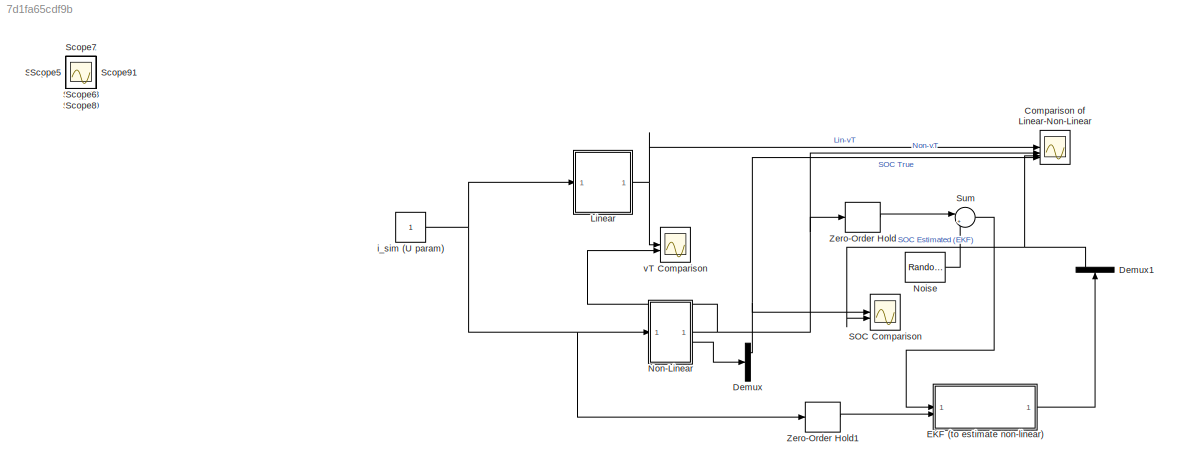
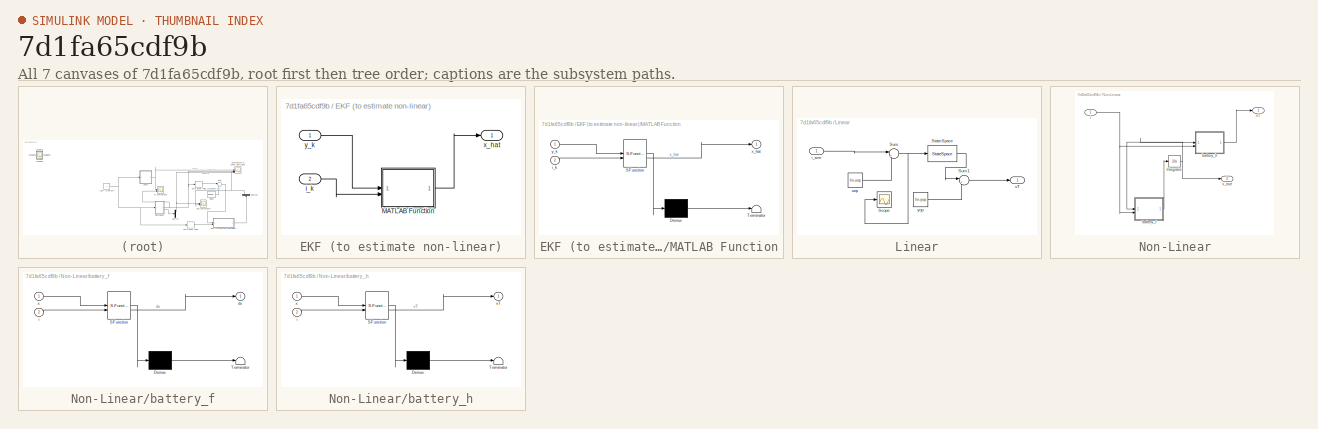
[diagram: thumbnail index - all 7 canvases of the model, root first then tree order]
MODEL slx_7d1fa65cdf9b
KIND model
CONFIG AbsTol = auto
CONFIG EnableMultiTasking = off
CONFIG FixedStep = auto
CONFIG InitFcn = params_battery;\n\nload('lin_battery.mat','lin');
CONFIG MaxStep = auto
CONFIG MinStep = auto
CONFIG PreLoadFcn = params_battery;
CONFIG RelTol = 1e-3
CONFIG SampleTimeConstraint = Unconstrained
CONFIG SolverName = VariableStepAuto
CONFIG StartTime = 0.0
CONFIG StopTime = 4000
BLOCK [Scope] Comparison of Linear-Non-Linear
  Floating = off
  NumInputPorts = 4
  ScopeSpecificationString = Simulink.scopes.TimeScopeBlockCfg('CurrentConfiguration', extmgr.ConfigurationSet(extmgr.Configuration('Core','General UI',true),extmgr.Configuration('Core','Source UI',true),extmgr.Configuration('Sources','WiredSimulink',true,'DataLoggingVariableName','ScopeData10'),extmgr.Configuration('Visuals','Time Domain',true,'SerializedDisplays',{struct('MinYLimReal','-0.48783','MaxYLimReal','3.912','YLabe...<+1573ch>
BLOCK [Demux] Demux
  Outputs = 3
BLOCK [Demux] Demux1
  NameLocation = right
  Outputs = 3
BLOCK [SubSystem] EKF (to estimate non-linear)
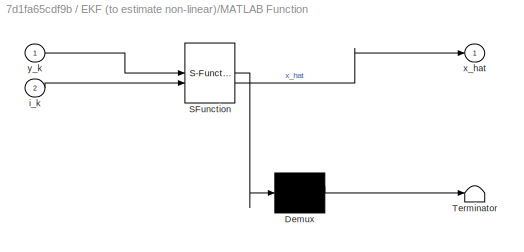
BLOCK [SubSystem] EKF (to estimate non-linear)/MATLAB Function
  ErrorFcn = Stateflow.Translate.translate
  PermitHierarchicalResolution = ExplicitOnly
  SFBlockType = MATLAB Function
  TreatAsAtomicUnit = on
BLOCK [Demux] EKF (to estimate non-linear)/MATLAB Function/ Demux 
  Outputs = 1
BLOCK [S-Function] EKF (to estimate non-linear)/MATLAB Function/ SFunction 
  EnableBusSupport = on
  FunctionName = sf_sfun
  Parameters = theta
  PortCounts = [2 2]
  SFcnIsStateOwnerBlock = off
  SFunctionDeploymentMode = off
  Tag = Stateflow S-Function 3
BLOCK [Terminator] EKF (to estimate non-linear)/MATLAB Function/ Terminator 
BLOCK [Inport] EKF (to estimate non-linear)/MATLAB Function/i_k
  Port = 2
BLOCK [Outport] EKF (to estimate non-linear)/MATLAB Function/x_hat
BLOCK [Inport] EKF (to estimate non-linear)/MATLAB Function/y_k
BLOCK [Inport] EKF (to estimate non-linear)/i_k
  Port = 2
BLOCK [Outport] EKF (to estimate non-linear)/x_hat
BLOCK [Inport] EKF (to estimate non-linear)/y_k
BLOCK [SubSystem] Linear
BLOCK [Scope] Linear/Scope
  Floating = off
  NumInputPorts = 1
  ScopeSpecificationString = Simulink.scopes.TimeScopeBlockCfg('CurrentConfiguration', extmgr.ConfigurationSet(extmgr.Configuration('Core','General UI',true),extmgr.Configuration('Core','Source UI',true),extmgr.Configuration('Sources','WiredSimulink',true,'DataLoggingVariableName','ScopeData1'),extmgr.Configuration('Visuals','Time Domain',true,'SerializedDisplays',{struct('MinYLimReal','0.9','MaxYLimReal','1.1','YLabelReal','...<+1452ch>
BLOCK [StateSpace] Linear/State-Space
  A = lin.A
  B = lin.B
  C = lin.C
  D = lin.D
  InitialCondition = [0 0 0]
BLOCK [Sum] Linear/Sum
  Inputs = |+-
BLOCK [Sum] Linear/Sum1
  Inputs = |++
BLOCK [Inport] Linear/i_sim
BLOCK [Constant] Linear/uop
  Value = lin.uop
  VectorParams1D = off
BLOCK [Outport] Linear/vT
BLOCK [Constant] Linear/yop
  Value = lin.yop
BLOCK [RandomNumber] Noise
  SampleTime = Ts
  Variance = 1e-4
BLOCK [SubSystem] Non-Linear
BLOCK [Integrator] Non-Linear/Integrator
  InitialCondition = [0.4; 0; 0]
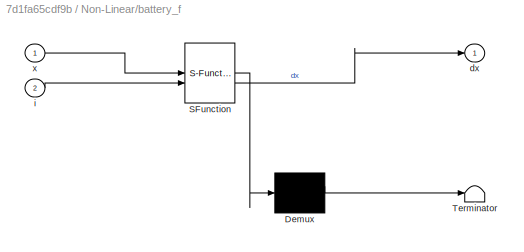
BLOCK [SubSystem] Non-Linear/battery_f
  ErrorFcn = Stateflow.Translate.translate
  PermitHierarchicalResolution = ExplicitOnly
  SFBlockType = MATLAB Function
  TreatAsAtomicUnit = on
BLOCK [Demux] Non-Linear/battery_f/ Demux 
  Outputs = 1
BLOCK [S-Function] Non-Linear/battery_f/ SFunction 
  EnableBusSupport = on
  FunctionName = sf_sfun
  Parameters = theta
  PortCounts = [2 2]
  SFcnIsStateOwnerBlock = off
  SFunctionDeploymentMode = off
  Tag = Stateflow S-Function 2
BLOCK [Terminator] Non-Linear/battery_f/ Terminator 
BLOCK [Outport] Non-Linear/battery_f/dx
BLOCK [Inport] Non-Linear/battery_f/i
  Port = 2
BLOCK [Inport] Non-Linear/battery_f/x
BLOCK [SubSystem] Non-Linear/battery_h
  ErrorFcn = Stateflow.Translate.translate
  PermitHierarchicalResolution = ExplicitOnly
  SFBlockType = MATLAB Function
  TreatAsAtomicUnit = on
BLOCK [Demux] Non-Linear/battery_h/ Demux 
  Outputs = 1
BLOCK [S-Function] Non-Linear/battery_h/ SFunction 
  EnableBusSupport = on
  FunctionName = sf_sfun
  Parameters = theta
  PortCounts = [2 2]
  SFcnIsStateOwnerBlock = off
  SFunctionDeploymentMode = off
  Tag = Stateflow S-Function 1
BLOCK [Terminator] Non-Linear/battery_h/ Terminator 
BLOCK [Inport] Non-Linear/battery_h/i
  Port = 2
BLOCK [Outport] Non-Linear/battery_h/vT
BLOCK [Inport] Non-Linear/battery_h/x
BLOCK [Inport] Non-Linear/i
BLOCK [Outport] Non-Linear/vT
BLOCK [Outport] Non-Linear/x_true
  Port = 2
BLOCK [Scope] SOC Comparison
  Floating = off
  NumInputPorts = 2
  ScopeSpecificationString = Simulink.scopes.TimeScopeBlockCfg('CurrentConfiguration', extmgr.ConfigurationSet(extmgr.Configuration('Core','General UI',true),extmgr.Configuration('Core','Source UI',true),extmgr.Configuration('Sources','WiredSimulink',true,'DataLoggingVariableName','ScopeData5'),extmgr.Configuration('Visuals','Time Domain',true,'SerializedDisplays',{struct('MinYLimReal','-0.00298','MaxYLimReal','0.44478','YLab...<+2314ch>
BLOCK [Scope] Scope
  Floating = off
  IOType = viewer
  NumInputPorts = 1
  ScopeSpecificationString = Simulink.scopes.TimeScopeBlockCfg('CurrentConfiguration', extmgr.ConfigurationSet(extmgr.Configuration('Core','General UI',true),extmgr.Configuration('Core','Source UI',true),extmgr.Configuration('Sources','WiredSimulink',true),extmgr.Configuration('Visuals','Time Domain',true,'SerializedDisplays',{struct('MinYLimReal','-1.00000','MaxYLimReal','1.00000','YLabelReal','','MinYLimMag','0.00000','MaxY...<+1409ch>
BLOCK [Scope] Scope1
  Floating = off
  IOType = viewer
  NumInputPorts = 1
  ScopeSpecificationString = Simulink.scopes.TimeScopeBlockCfg('CurrentConfiguration', extmgr.ConfigurationSet(extmgr.Configuration('Core','General UI',true),extmgr.Configuration('Core','Source UI',true),extmgr.Configuration('Sources','WiredSimulink',true,'DataLoggingVariableName','ScopeData1'),extmgr.Configuration('Visuals','Time Domain',true,'SerializedDisplays',{struct('MinYLimReal','-1.00000','MaxYLimReal','1.00000','YLab...<+1515ch>
BLOCK [Scope] Scope10
  Floating = off
  IOType = viewer
  NumInputPorts = 1
  ScopeSpecificationString = Simulink.scopes.TimeScopeBlockCfg('CurrentConfiguration', extmgr.ConfigurationSet(extmgr.Configuration('Core','General UI',true),extmgr.Configuration('Core','Source UI',true),extmgr.Configuration('Sources','WiredSimulink',true,'DataLoggingVariableName','ScopeData11'),extmgr.Configuration('Visuals','Time Domain',true,'SerializedDisplays',{struct('MinYLimReal','-0.13119','MaxYLimReal','1.10737','YLa...<+1468ch>
BLOCK [Scope] Scope11
  Floating = off
  IOType = viewer
  NumInputPorts = 1
  ScopeSpecificationString = Simulink.scopes.TimeScopeBlockCfg('CurrentConfiguration', extmgr.ConfigurationSet(extmgr.Configuration('Core','General UI',true),extmgr.Configuration('Core','Source UI',true),extmgr.Configuration('Sources','WiredSimulink',true,'DataLoggingVariableName','ScopeData1'),extmgr.Configuration('Visuals','Time Domain',true,'SerializedDisplays',{struct('MinYLimReal','0.5335','MaxYLimReal','3.79852','YLabel...<+1455ch>
BLOCK [Scope] Scope12
  Floating = off
  IOType = viewer
  NumInputPorts = 1
  ScopeSpecificationString = Simulink.scopes.TimeScopeBlockCfg('CurrentConfiguration', extmgr.ConfigurationSet(extmgr.Configuration('Core','General UI',true),extmgr.Configuration('Core','Source UI',true),extmgr.Configuration('Sources','WiredSimulink',true,'DataLoggingVariableName','ScopeData2'),extmgr.Configuration('Visuals','Time Domain',true,'SerializedDisplays',{struct('MinYLimReal','0.9','MaxYLimReal','1.1','YLabelReal','...<+1430ch>
BLOCK [Scope] Scope13
  Floating = off
  IOType = viewer
  NumInputPorts = 1
  ScopeSpecificationString = Simulink.scopes.TimeScopeBlockCfg('CurrentConfiguration', extmgr.ConfigurationSet(extmgr.Configuration('Core','General UI',true),extmgr.Configuration('Core','Source UI',true),extmgr.Configuration('Sources','WiredSimulink',true,'DataLoggingVariableName','ScopeData3'),extmgr.Configuration('Visuals','Time Domain',true,'SerializedDisplays',{struct('MinYLimReal','2.24342','MaxYLimReal','3.62714','YLabe...<+1449ch>
BLOCK [Scope] Scope2
  Floating = off
  IOType = viewer
  NumInputPorts = 1
  ScopeSpecificationString = Simulink.scopes.TimeScopeBlockCfg('CurrentConfiguration', extmgr.ConfigurationSet(extmgr.Configuration('Core','General UI',true),extmgr.Configuration('Core','Source UI',true),extmgr.Configuration('Sources','WiredSimulink',true,'DataLoggingVariableName','ScopeData2'),extmgr.Configuration('Visuals','Time Domain',true,'SerializedDisplays',{struct('MinYLimReal','0.9','MaxYLimReal','1.1','YLabelReal','...<+1452ch>
BLOCK [Scope] Scope3
  Floating = off
  IOType = viewer
  NumInputPorts = 1
  ScopeSpecificationString = Simulink.scopes.TimeScopeBlockCfg('CurrentConfiguration', extmgr.ConfigurationSet(extmgr.Configuration('Core','General UI',true),extmgr.Configuration('Core','Source UI',true),extmgr.Configuration('Sources','WiredSimulink',true,'DataLoggingVariableName','ScopeData3'),extmgr.Configuration('Visuals','Time Domain',true,'SerializedDisplays',{struct('MinYLimReal','-3.19047','MaxYLimReal','0.27663','YLab...<+1459ch>
BLOCK [Scope] Scope4
  Floating = off
  IOType = viewer
  NumInputPorts = 1
  ScopeSpecificationString = Simulink.scopes.TimeScopeBlockCfg('CurrentConfiguration', extmgr.ConfigurationSet(extmgr.Configuration('Core','General UI',true),extmgr.Configuration('Core','Source UI',true),extmgr.Configuration('Sources','WiredSimulink',true,'DataLoggingVariableName','ScopeData4'),extmgr.Configuration('Visuals','Time Domain',true,'SerializedDisplays',{struct('MinYLimReal','2.5421','MaxYLimReal','4.5421','YLabelR...<+1476ch>
BLOCK [Scope] Scope5
  Floating = off
  IOType = viewer
  NumInputPorts = 1
  ScopeSpecificationString = Simulink.scopes.TimeScopeBlockCfg('CurrentConfiguration', extmgr.ConfigurationSet(extmgr.Configuration('Core','General UI',true),extmgr.Configuration('Core','Source UI',true),extmgr.Configuration('Sources','WiredSimulink',true,'DataLoggingVariableName','ScopeData5'),extmgr.Configuration('Visuals','Time Domain',true,'SerializedDisplays',{struct('MinYLimReal','-0.125','MaxYLimReal','1.125','YLabelRe...<+1436ch>
BLOCK [Scope] Scope6
  Floating = off
  IOType = viewer
  NumInputPorts = 1
  ScopeSpecificationString = Simulink.scopes.TimeScopeBlockCfg('CurrentConfiguration', extmgr.ConfigurationSet(extmgr.Configuration('Core','General UI',true),extmgr.Configuration('Core','Source UI',true),extmgr.Configuration('Sources','WiredSimulink',true,'DataLoggingVariableName','ScopeData6'),extmgr.Configuration('Visuals','Time Domain',true,'SerializedDisplays',{struct('MinYLimReal','0.35163','MaxYLimReal','3.81872','YLabe...<+1450ch>
BLOCK [Scope] Scope7
  Floating = off
  IOType = viewer
  NumInputPorts = 1
  ScopeSpecificationString = Simulink.scopes.TimeScopeBlockCfg('CurrentConfiguration', extmgr.ConfigurationSet(extmgr.Configuration('Core','General UI',true),extmgr.Configuration('Core','Source UI',true),extmgr.Configuration('Sources','WiredSimulink',true,'DataLoggingVariableName','ScopeData7'),extmgr.Configuration('Visuals','Time Domain',true,'SerializedDisplays',{struct('MinYLimReal','0.5335','MaxYLimReal','3.79852','YLabel...<+1451ch>
BLOCK [Scope] Scope8
  Floating = off
  IOType = viewer
  NumInputPorts = 1
  ScopeSpecificationString = Simulink.scopes.TimeScopeBlockCfg('CurrentConfiguration', extmgr.ConfigurationSet(extmgr.Configuration('Core','General UI',true),extmgr.Configuration('Core','Source UI',true),extmgr.Configuration('Sources','WiredSimulink',true,'DataLoggingVariableName','ScopeData8'),extmgr.Configuration('Visuals','Time Domain',true,'SerializedDisplays',{struct('MinYLimReal','-4.7172','MaxYLimReal','1.65191','YLabe...<+1486ch>
BLOCK [Scope] Scope9
  Floating = off
  IOType = viewer
  NumInputPorts = 1
  ScopeSpecificationString = Simulink.scopes.TimeScopeBlockCfg('CurrentConfiguration', extmgr.ConfigurationSet(extmgr.Configuration('Core','General UI',true),extmgr.Configuration('Core','Source UI',true),extmgr.Configuration('Sources','WiredSimulink',true,'DataLoggingVariableName','ScopeData9'),extmgr.Configuration('Visuals','Time Domain',true,'SerializedDisplays',{struct('MinYLimReal','0.35163','MaxYLimReal','3.81872','YLabe...<+1452ch>
BLOCK [Sum] Sum
  Inputs = |++
BLOCK [ZeroOrderHold] Zero-Order Hold
  SampleTime = Ts
BLOCK [ZeroOrderHold] Zero-Order Hold1
  SampleTime = Ts
BLOCK [Constant] i_sim (U param)
BLOCK [Scope] vT Comparison
  Floating = off
  NumInputPorts = 2
  ScopeSpecificationString = Simulink.scopes.TimeScopeBlockCfg('CurrentConfiguration', extmgr.ConfigurationSet(extmgr.Configuration('Core','General UI',true),extmgr.Configuration('Core','Source UI',true),extmgr.Configuration('Sources','WiredSimulink',true,'DataLoggingVariableName','ScopeData4'),extmgr.Configuration('Visuals','Time Domain',true,'SerializedDisplays',{struct('MinYLimReal','-0.434','MaxYLimReal','3.90602','YLabel...<+1512ch>
NET Demux1:1 -> Comparison of Linear-Non-Linear:3, SOC Comparison:2
NET Demux:1 -> Comparison of Linear-Non-Linear:4, SOC Comparison:1
LINE EKF (to estimate non-linear)/MATLAB Function:1 -> EKF (to estimate non-linear)/x_hat:1
LINE EKF (to estimate non-linear)/i_k:1 -> EKF (to estimate non-linear)/MATLAB Function:2
LINE EKF (to estimate non-linear)/y_k:1 -> EKF (to estimate non-linear)/MATLAB Function:1
LINE EKF (to estimate non-linear):1 -> Demux1:1
LINE Linear/State-Space:1 -> Linear/Sum1:1
LINE Linear/Sum1:1 -> Linear/vT:1
NET Linear/Sum:1 -> Linear/Scope:1, Linear/State-Space:1
LINE Linear/i_sim:1 -> Linear/Sum:1
LINE Linear/uop:1 -> Linear/Sum:2
LINE Linear/yop:1 -> Linear/Sum1:2
NET Linear:1 -> Comparison of Linear-Non-Linear:1, vT Comparison:1
LINE Noise:1 -> Sum:2
NET Non-Linear/Integrator:1 -> Non-Linear/battery_f:1, Non-Linear/battery_h:1, Non-Linear/x_true:1
LINE Non-Linear/battery_f:1 -> Non-Linear/Integrator:1
LINE Non-Linear/battery_h:1 -> Non-Linear/vT:1
NET Non-Linear/i:1 -> Non-Linear/battery_f:2, Non-Linear/battery_h:2
NET Non-Linear:1 -> Comparison of Linear-Non-Linear:2, Zero-Order Hold:1, vT Comparison:2
LINE Non-Linear:2 -> Demux:1
LINE Sum:1 -> EKF (to estimate non-linear):1
LINE Zero-Order Hold1:1 -> EKF (to estimate non-linear):2
LINE Zero-Order Hold:1 -> Sum:1
NET i_sim (U param):1 -> Linear:1, Non-Linear:1, Zero-Order Hold1:1
note: NET lines group one-source signal fan-out (src -> all destinations, sorted); 1:1 wires keep LINE
CHART Non-Linear/battery_h states=1 transitions=1
  STATE_LABEL 'eML_blk_kernel()'
  STATE_LABEL 'SCRIPT:\nfunction vT = fcn(x,i, theta)\nvT = battery_h(x,i,theta);\nend\n'
CHART Non-Linear/battery_f states=1 transitions=1
  STATE_LABEL 'eML_blk_kernel()'
  STATE_LABEL 'SCRIPT:\nfunction dx = fcn(x,i, theta)\ndx = battery_f(x,i,theta);\nend\n'
CHART EKF (to estimate non-linear)/MATLAB Function states=1 transitions=1
  STATE_LABEL 'eML_blk_kernel()'
  STATE_LABEL 'SCRIPT:\nfunction x_hat = fcn(y_k, i_k, theta)\n% EKF for battery model\n% States: x = [sigma; vTS; vTL]\n% Input:  i_k (A)  discharge is positive\n% Meas:   y_k (V)  terminal voltage (noisy)\n\n% --------- tuning / settings ----------\nTs = 0.1;              % sample time (must match your ZOH)\nR  = 1e-4;             % measurement variance (10 mV std -> 0.01^2)\nQ = diag([1e-9, 1e-6, 1e-6]);   % process no...<+1834ch>'
CHART  states=0 transitions=0
CHART  states=0 transitions=0
CHART  states=0 transitions=0
